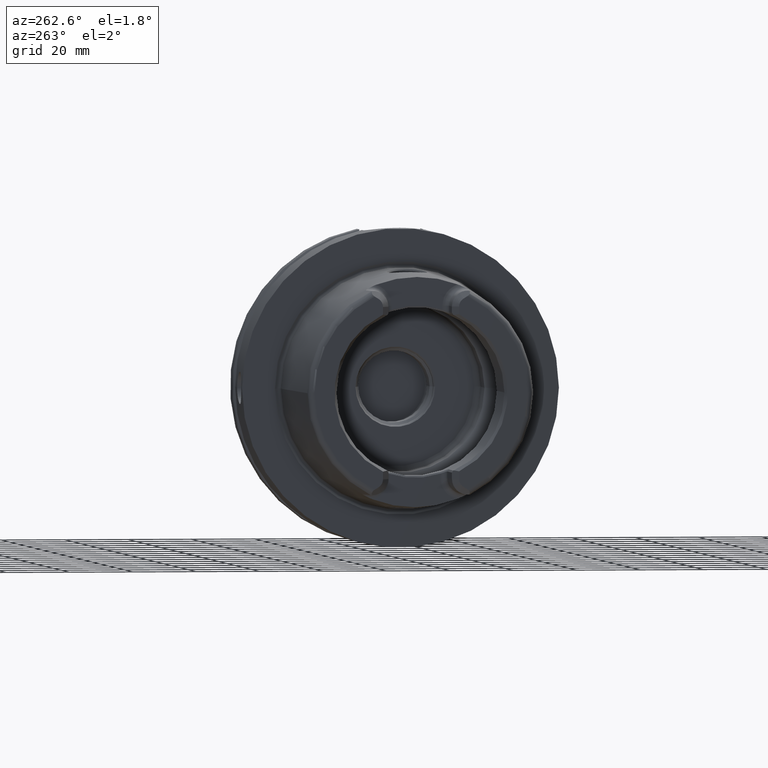
[diagram: clean part render]
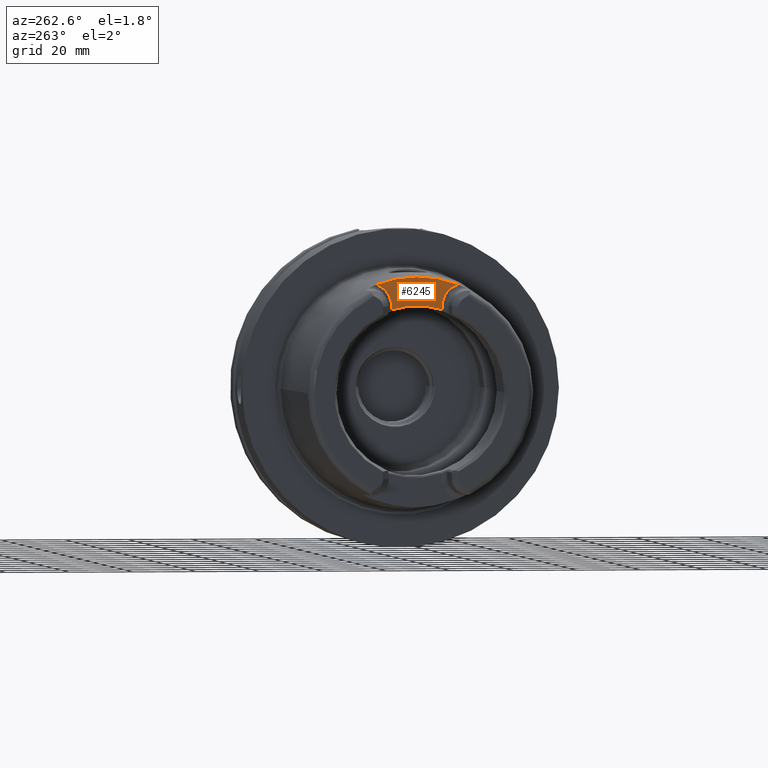
[diagram: same view with one face highlighted and labeled with its STEP entity id]
A machine part, auxiliary view. The second image highlights one B-rep face of the part: STEP entity #6245.
In plain terms, the highlighted planar face has unit normal (-1, 0, 0).
Its self-contained STEP definition (entity closure, byte-faithful):
#9=CARTESIAN_POINT('',(-4.E1,0.E0,0.E0));
#10=DIRECTION('',(1.E0,0.E0,0.E0));
#11=DIRECTION('',(0.E0,3.574556786365E-1,9.339301032789E-1));
#12=AXIS2_PLACEMENT_3D('',#9,#10,#11);
#2548=DIRECTION('',(0.E0,5.174062213620E-12,1.E0));
#2549=VECTOR('',#2548,1.199558594508E0);
#2550=CARTESIAN_POINT('',(-4.E1,8.009999999994E0,2.576044140549E1));
#2551=LINE('',#2550,#2549);
#2552=CARTESIAN_POINT('',(-4.E1,1.501E1,2.696E1));
#2553=DIRECTION('',(-1.E0,0.E0,0.E0));
#2554=DIRECTION('',(0.E0,-1.E0,0.E0));
#2555=AXIS2_PLACEMENT_3D('',#2552,#2553,#2554);
#2557=CARTESIAN_POINT('',(-4.E1,-1.501E1,2.696E1));
#2558=DIRECTION('',(-1.E0,0.E0,0.E0));
#2559=DIRECTION('',(0.E0,3.057634963159E-1,9.521074962002E-1));
#2560=AXIS2_PLACEMENT_3D('',#2557,#2558,#2559);
#2562=DIRECTION('',(0.E0,6.866664706538E-12,-1.E0));
#2563=VECTOR('',#2562,1.199558594503E0);
#2564=CARTESIAN_POINT('',(-4.E1,-8.010000000001E0,2.695999999999E1));
#2565=LINE('',#2564,#2563);
#2566=CARTESIAN_POINT('',(-4.E1,8.009999999994E0,2.576044140549E1));
#2567=CARTESIAN_POINT('',(-4.E1,7.269616392493E0,2.599521452766E1));
#2568=CARTESIAN_POINT('',(-4.E1,5.774680607733E0,2.639793295020E1));
#2569=CARTESIAN_POINT('',(-4.E1,3.481759859025E0,2.680464578135E1));
#2570=CARTESIAN_POINT('',(-4.E1,1.163574268407E0,2.700848033442E1));
#2571=CARTESIAN_POINT('',(-4.E1,-1.163574229637E0,2.700848033529E1));
#2572=CARTESIAN_POINT('',(-4.E1,-3.481759771637E0,2.680464579107E1));
#2573=CARTESIAN_POINT('',(-4.E1,-5.774680487919E0,2.639793297771E1));
#2574=CARTESIAN_POINT('',(-4.E1,-7.269616343063E0,2.599521454333E1));
#2575=CARTESIAN_POINT('',(-4.E1,-8.009999999993E0,2.576044140549E1));
#2761=CARTESIAN_POINT('',(-4.E1,8.01E0,2.696E1));
#2763=VERTEX_POINT('',#2761);
#2765=CARTESIAN_POINT('',(-4.E1,-8.01E0,2.696E1));
#2767=VERTEX_POINT('',#2765);
#2769=CARTESIAN_POINT('',(-4.E1,1.286965552579E1,3.362475247340E1));
#2770=VERTEX_POINT('',#2769);
#2775=CARTESIAN_POINT('',(-4.E1,-1.286965552579E1,3.362475247340E1));
#2776=VERTEX_POINT('',#2775);
#2817=CARTESIAN_POINT('',(-4.E1,8.009999999994E0,2.576044140549E1));
#2818=VERTEX_POINT('',#2817);
#2819=CARTESIAN_POINT('',(-4.E1,-8.009999999993E0,2.576044140549E1));
#2820=VERTEX_POINT('',#2819);
#6230=CARTESIAN_POINT('',(-4.E1,0.E0,0.E0));
#6231=DIRECTION('',(-1.E0,0.E0,0.E0));
#6232=DIRECTION('',(0.E0,0.E0,1.E0));
#6233=AXIS2_PLACEMENT_3D('',#6230,#6231,#6232);
#6234=PLANE('',#6233);
#6235=ORIENTED_EDGE('',*,*,#3379,.T.);
#6236=ORIENTED_EDGE('',*,*,#3397,.T.);
#6237=ORIENTED_EDGE('',*,*,#3164,.T.);
#6239=ORIENTED_EDGE('',*,*,#6238,.T.);
#6241=ORIENTED_EDGE('',*,*,#6240,.T.);
#6242=ORIENTED_EDGE('',*,*,#6221,.F.);
#6243=EDGE_LOOP('',(#6235,#6236,#6237,#6239,#6241,#6242));
#6244=FACE_OUTER_BOUND('',#6243,.F.);
#6245=ADVANCED_FACE('',(#6244),#6234,.T.);
#13=CIRCLE('',#12,3.60035E1);
#2556=CIRCLE('',#2555,7.E0);
#2561=CIRCLE('',#2560,7.E0);
#2576=B_SPLINE_CURVE_WITH_KNOTS('',3,(#2566,#2567,#2568,#2569,#2570,#2571,#2572,
#2573,#2574,#2575),.UNSPECIFIED.,.F.,.F.,(4,1,1,1,1,1,1,4),(0.E0,
1.428571428571E-1,2.857142857143E-1,4.285714285714E-1,5.714285714286E-1,
7.142857142857E-1,8.571428571429E-1,1.E0),.UNSPECIFIED.);
#3164=EDGE_CURVE('',#2770,#2776,#13,.T.);
#3379=EDGE_CURVE('',#2818,#2763,#2551,.T.);
#3397=EDGE_CURVE('',#2763,#2770,#2556,.T.);
#6221=EDGE_CURVE('',#2818,#2820,#2576,.T.);
#6238=EDGE_CURVE('',#2776,#2767,#2561,.T.);
#6240=EDGE_CURVE('',#2767,#2820,#2565,.T.);